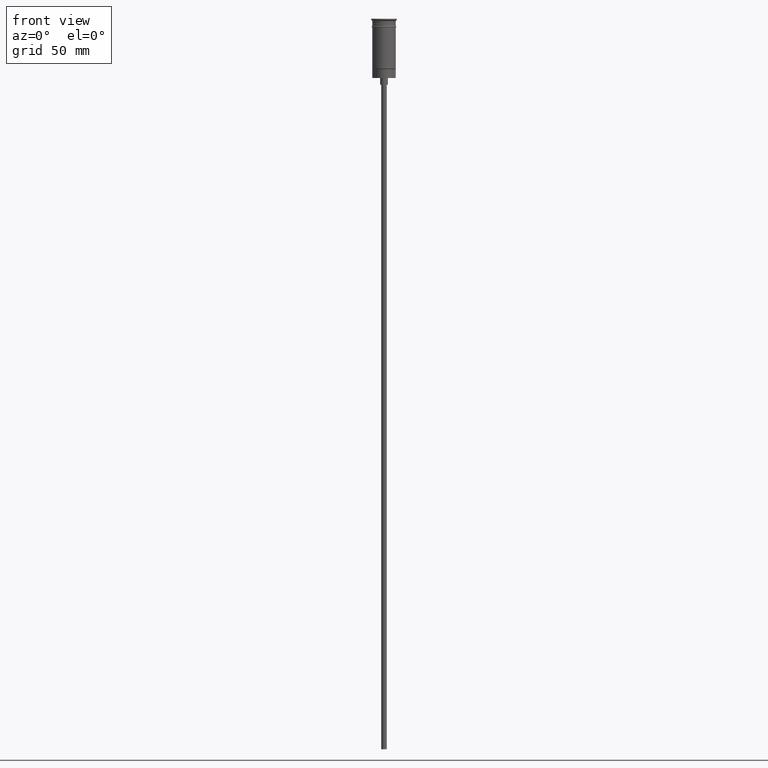
[diagram: clean part render]
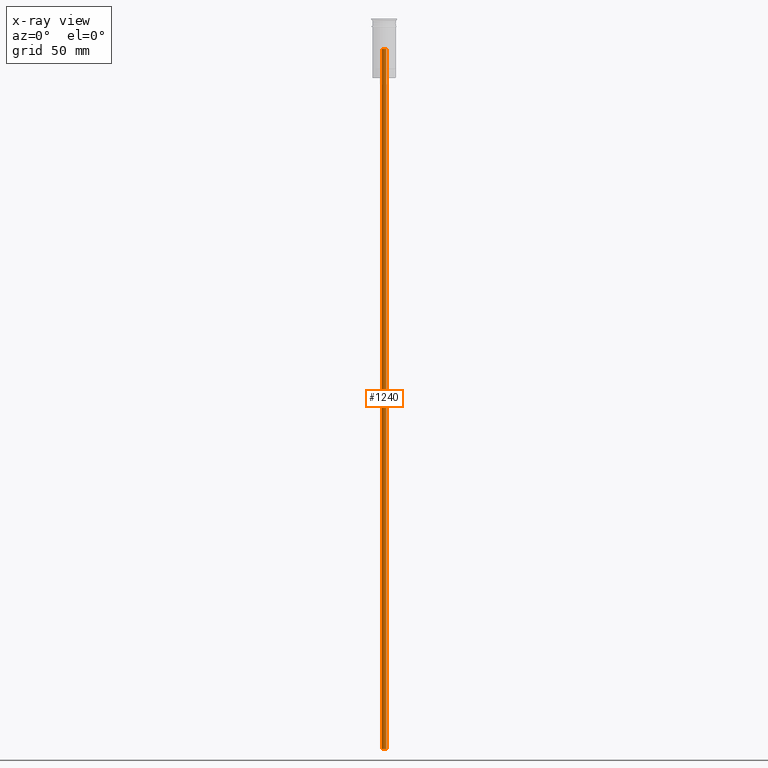
[diagram: x-ray — body ghosted, one internal face saturated and labeled with its STEP entity id]
A machine part, front view, then the same camera in x-ray: the body is ghosted and one INTERNAL B-rep face — a face not visible from any outside direction — is saturated and labeled: STEP entity #1240.
In plain terms, the highlighted cylindrical surface (edge-blend (fillet) strip) has radius 1 mm, axis along (-0, -0, -1).
Its self-contained STEP definition (entity closure, byte-faithful):
#25 = ORIENTED_EDGE ( 'NONE', *, *, #111, .T. ) ;
#43 = EDGE_CURVE ( 'NONE', #1146, #232, #512, .T. ) ;
#111 = EDGE_CURVE ( 'NONE', #1146, #840, #1132, .T. ) ;
#138 = DIRECTION ( 'NONE',  ( -0.000000000000000000, -0.000000000000000000, -1.000000000000000000 ) ) ;
#163 = EDGE_CURVE ( 'NONE', #840, #773, #707, .T. ) ;
#184 = DIRECTION ( 'NONE',  ( -1.000000000000000000, 0.000000000000000000, 0.000000000000000000 ) ) ;
#219 = DIRECTION ( 'NONE',  ( 0.000000000000000000, -1.000000000000000000, 0.000000000000000000 ) ) ;
#231 = ORIENTED_EDGE ( 'NONE', *, *, #163, .T. ) ;
#232 = VERTEX_POINT ( 'NONE', #1157 ) ;
#235 = LINE ( 'NONE', #1009, #514 ) ;
#289 = EDGE_CURVE ( 'NONE', #232, #773, #235, .T. ) ;
#348 = DIRECTION ( 'NONE',  ( -1.000000000000000000, 0.000000000000000000, 0.000000000000000000 ) ) ;
#424 = DIRECTION ( 'NONE',  ( 0.000000000000000000, 0.000000000000000000, -1.000000000000000000 ) ) ;
#429 = AXIS2_PLACEMENT_3D ( 'NONE', #926, #424, #184 ) ;
#432 = DIRECTION ( 'NONE',  ( -0.000000000000000000, -0.000000000000000000, -1.000000000000000000 ) ) ;
#512 = CIRCLE ( 'NONE', #824, 1.000000000000000000 ) ;
#514 = VECTOR ( 'NONE', #432, 1000.000000000000000 ) ;
#587 = CARTESIAN_POINT ( 'NONE',  ( -1.000000000000000000, 0.000000000000000000, -326.5000000000000000 ) ) ;
#625 = CARTESIAN_POINT ( 'NONE',  ( 1.000000000000000000, 1.224646799147353207E-16, -10.67157287525383147 ) ) ;
#707 = CIRCLE ( 'NONE', #429, 1.000000000000000000 ) ;
#733 = EDGE_LOOP ( 'NONE', ( #958, #25, #231, #1380 ) ) ;
#746 = CYLINDRICAL_SURFACE ( 'NONE', #938, 1.000000000000000000 ) ;
#773 = VERTEX_POINT ( 'NONE', #587 ) ;
#824 = AXIS2_PLACEMENT_3D ( 'NONE', #1338, #1476, #219 ) ;
#840 = VERTEX_POINT ( 'NONE', #1503 ) ;
#858 = FACE_OUTER_BOUND ( 'NONE', #733, .T. ) ;
#926 = CARTESIAN_POINT ( 'NONE',  ( 0.000000000000000000, 0.000000000000000000, -326.5000000000000000 ) ) ;
#938 = AXIS2_PLACEMENT_3D ( 'NONE', #1259, #138, #348 ) ;
#958 = ORIENTED_EDGE ( 'NONE', *, *, #43, .F. ) ;
#1009 = CARTESIAN_POINT ( 'NONE',  ( -1.000000000000000000, 0.000000000000000000, -10.67157287525383147 ) ) ;
#1132 = LINE ( 'NONE', #625, #1141 ) ;
#1141 = VECTOR ( 'NONE', #1505, 1000.000000000000000 ) ;
#1146 = VERTEX_POINT ( 'NONE', #1208 ) ;
#1157 = CARTESIAN_POINT ( 'NONE',  ( -1.000000000000000000, 0.000000000000000000, -13.49999999999999822 ) ) ;
#1208 = CARTESIAN_POINT ( 'NONE',  ( 1.000000000000000000, 1.224646799147353207E-16, -13.49999999999999822 ) ) ;
#1240 = ADVANCED_FACE ( 'NONE', ( #858 ), #746, .F. ) ;
#1259 = CARTESIAN_POINT ( 'NONE',  ( 0.000000000000000000, 0.000000000000000000, -10.67157287525383147 ) ) ;
#1338 = CARTESIAN_POINT ( 'NONE',  ( 0.000000000000000000, 0.000000000000000000, -13.49999999999999822 ) ) ;
#1380 = ORIENTED_EDGE ( 'NONE', *, *, #289, .F. ) ;
#1476 = DIRECTION ( 'NONE',  ( -0.000000000000000000, -3.730588120380232914E-16, -1.000000000000000000 ) ) ;
#1503 = CARTESIAN_POINT ( 'NONE',  ( 1.000000000000000000, 1.224646799147353207E-16, -326.5000000000000000 ) ) ;
#1505 = DIRECTION ( 'NONE',  ( -0.000000000000000000, -0.000000000000000000, -1.000000000000000000 ) ) ;